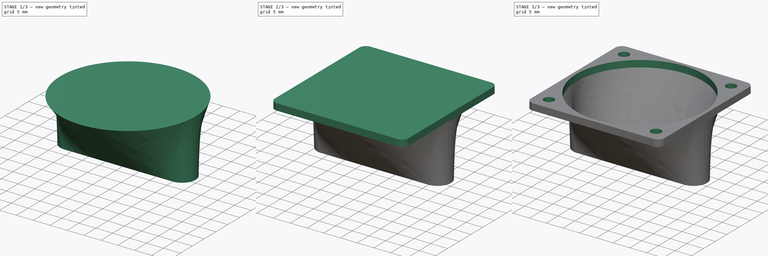
[diagram: build sequence overview — one tinted view per stage of 3, left to right]
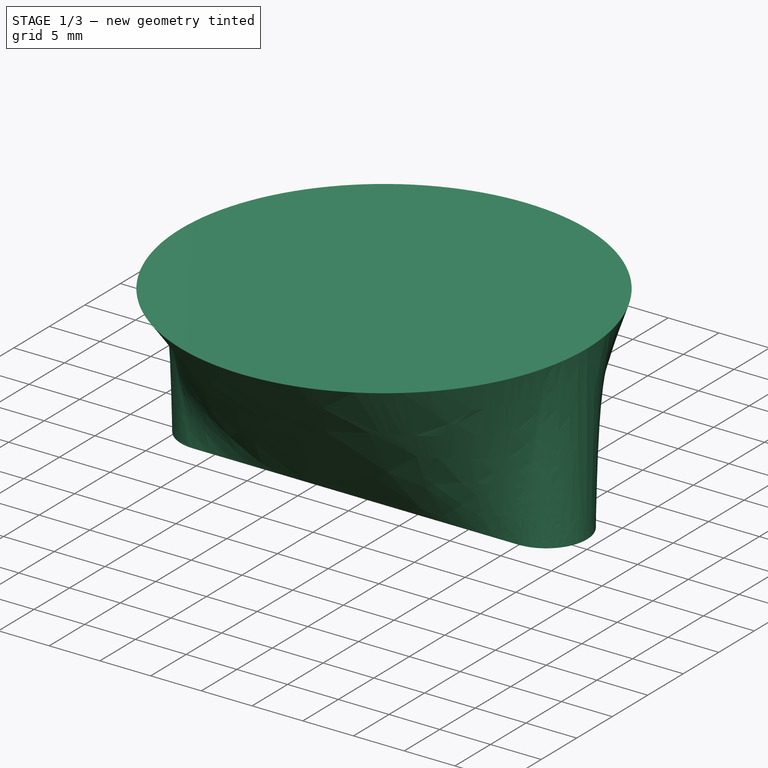
[diagram: stage 1 of 3 — iso view after this stage's code; geometry added in this stage tinted green]
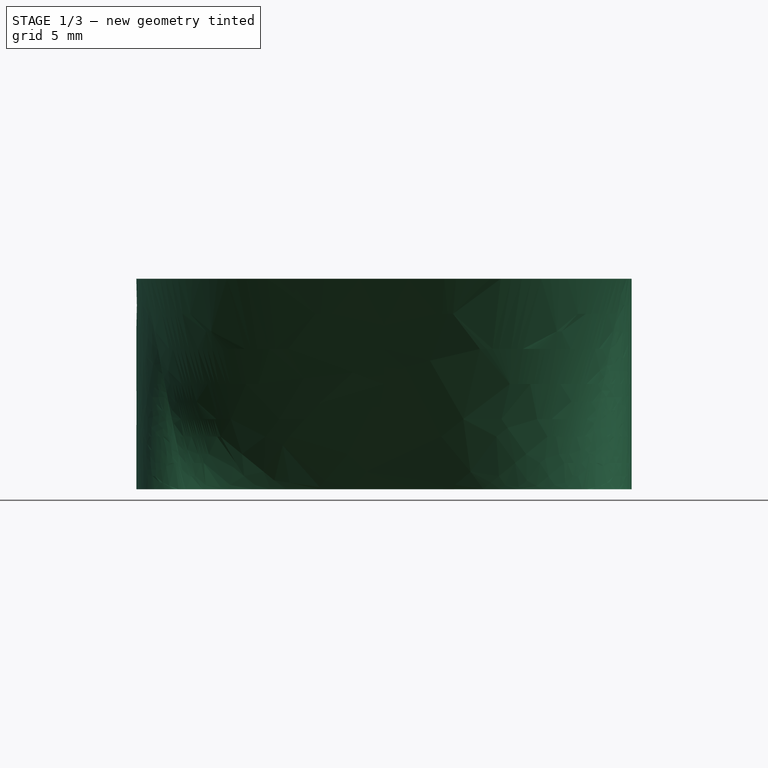
[diagram: stage 1 of 3 — front view after this stage's code; geometry added in this stage tinted green]
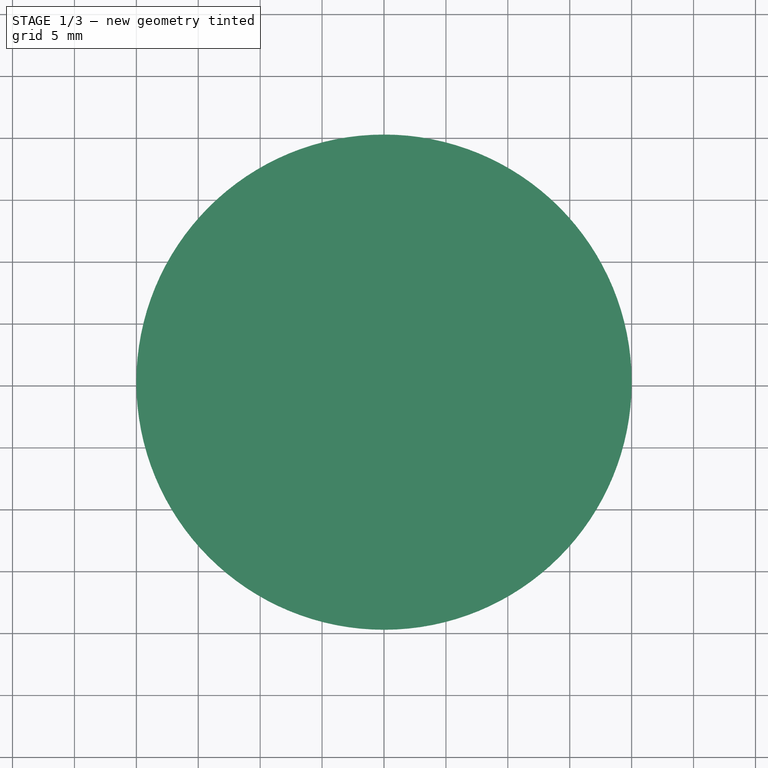
[diagram: stage 1 of 3 — top view after this stage's code; geometry added in this stage tinted green]
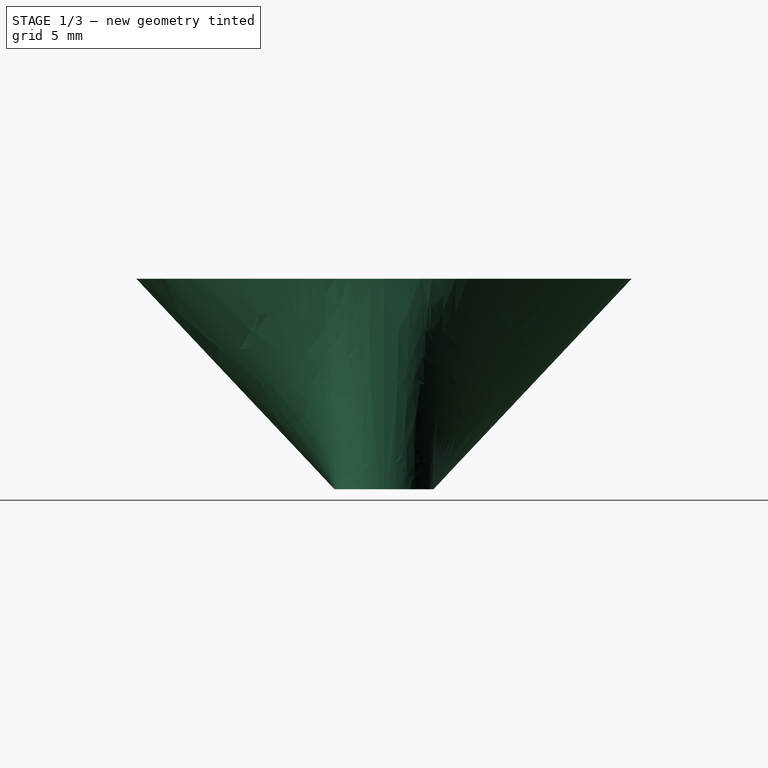
[diagram: stage 1 of 3 — right view after this stage's code; geometry added in this stage tinted green]
FCSTD DOCUMENT  (FreeCAD 0.15R4671 (Git))
Label: Kraken_Cooler
License: All rights reserved
LicenseURL: http://en.wikipedia.org/wiki/All_rights_reserved
objects: Sketcher::SketchObject×7, Part::Loft×2, PartDesign::Pocket×2, Part::Cut×1, PartDesign::Pad×1
note: 16 computed .brp shape members not serialized (recipe doc carries the construction recipe); baked Part::Feature solids carry a one-line shape summary decoded from their .brp

FEATURE [Sketcher::SketchObject] Sketch
  sketch-geometry (4):
    g0: ArcOfCircle CenterX=-16 CenterY=0 CenterZ=0 NormalX=0 NormalY=0 NormalZ=1 Radius=3 StartAngle=1.5708 EndAngle=4.71239
    g1: ArcOfCircle CenterX=16 CenterY=0 CenterZ=0 NormalX=0 NormalY=0 NormalZ=1 Radius=3 StartAngle=4.71239 EndAngle=7.85398
    g2: LineSegment StartX=-16 StartY=-3 StartZ=0 EndX=16 EndY=-3 EndZ=0
    g3: LineSegment StartX=-16 StartY=3 StartZ=0 EndX=16 EndY=3 EndZ=0
  constraints (10):
    c: Tangent(g0,g3) = 1.5708
    c: Tangent(g0,g2) = -1.5708
    c: Tangent(g2,g1) = -1.5708
    c: Tangent(g3,g1) = 1.5708
    c: Horizontal(g2)
    c: Equal(g0,g1)
    c: Distance(g0,g1) = 32
    c: Radius(g0) = 3
    c: Symmetric(g0,g1,g-2)
    c: PointOnObject(g1,g-1)
FEATURE [Sketcher::SketchObject] Sketch001
  sketch-geometry (4):
    g0: ArcOfCircle CenterX=-16 CenterY=0 CenterZ=0 NormalX=0 NormalY=0 NormalZ=1 Radius=4 StartAngle=1.5708 EndAngle=4.71239
    g1: ArcOfCircle CenterX=16 CenterY=0 CenterZ=0 NormalX=0 NormalY=0 NormalZ=1 Radius=4 StartAngle=4.71239 EndAngle=7.85398
    g2: LineSegment StartX=-16 StartY=-4 StartZ=0 EndX=16 EndY=-4 EndZ=0
    g3: LineSegment StartX=-16 StartY=4 StartZ=0 EndX=16 EndY=4 EndZ=0
  constraints (10):
    c: Tangent(g0,g3) = 1.5708
    c: Tangent(g0,g2) = -1.5708
    c: Tangent(g2,g1) = -1.5708
    c: Tangent(g3,g1) = 1.5708
    c: Horizontal(g2)
    c: Equal(g0,g1)
    c: Distance(g0,g1) = 32
    c: Radius(g0) = 4
    c: Symmetric(g0,g1,g-2)
    c: PointOnObject(g1,g-1)
FEATURE [Sketcher::SketchObject] Sketch002
  Placement = pos=(0,0,17) rot=(0,0,1;0rad)
  sketch-geometry (1):
    g0: Circle CenterX=0 CenterY=0 CenterZ=0 NormalX=0 NormalY=0 NormalZ=1 Radius=19
  constraints (2):
    c: Radius(g0) = 19
    c: Coincident(g0,g-1)
FEATURE [Sketcher::SketchObject] Sketch003
  Placement = pos=(0,0,17) rot=(0,0,1;0rad)
  sketch-geometry (1):
    g0: Circle CenterX=0 CenterY=0 CenterZ=0 NormalX=0 NormalY=0 NormalZ=1 Radius=20
  constraints (2):
    c: Radius(g0) = 20
    c: Coincident(g0,g-1)
FEATURE [Part::Loft] Loft
  Closed = false
  Ruled = false
  Sections = -> [Sketch,Sketch002]
  Solid = true
FEATURE [Part::Loft] Loft001
  Closed = false
  Ruled = false
  Sections = -> [Sketch001,Sketch003]
  Solid = true
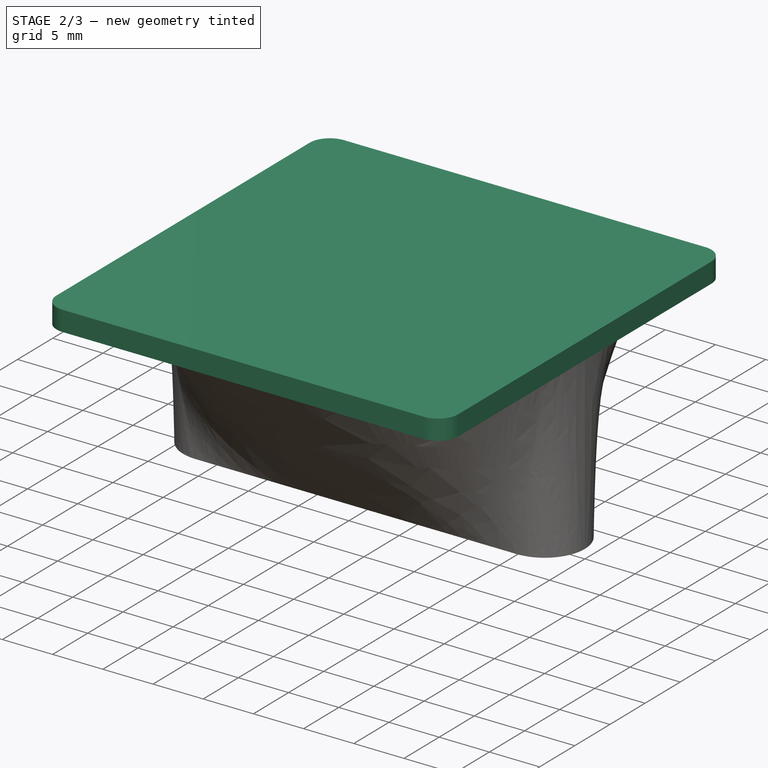
[diagram: stage 2 of 3 — iso view after this stage's code; geometry added in this stage tinted green]
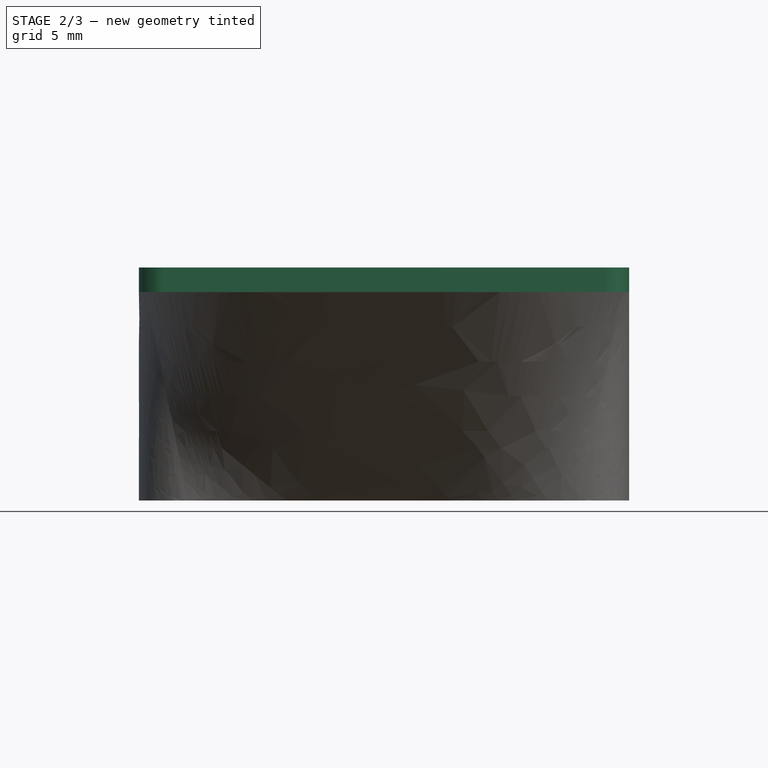
[diagram: stage 2 of 3 — front view after this stage's code; geometry added in this stage tinted green]
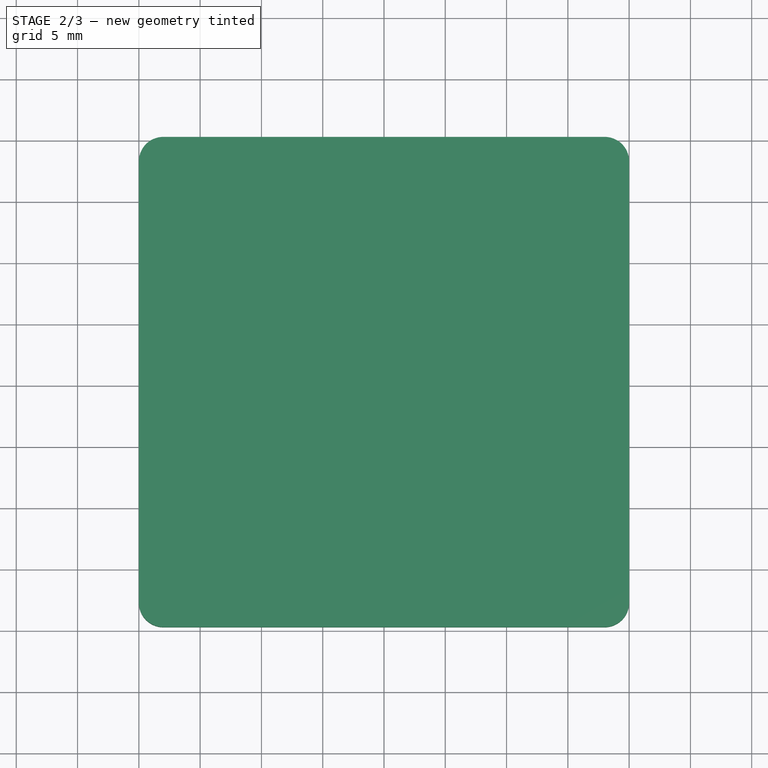
[diagram: stage 2 of 3 — top view after this stage's code; geometry added in this stage tinted green]
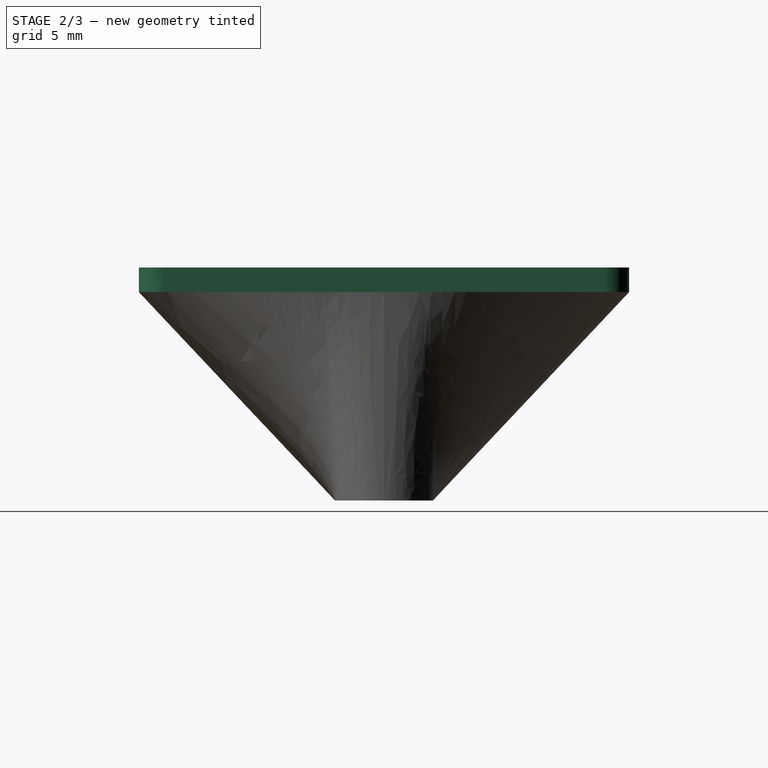
[diagram: stage 2 of 3 — right view after this stage's code; geometry added in this stage tinted green]
FEATURE [Part::Cut] Cut
  Base = -> Loft001
  Tool = -> Loft
FEATURE [Sketcher::SketchObject] Sketch004
  Placement = pos=(0,0,17) rot=(0,0,1;0rad)
  Support = -> Cut [Face4]
  sketch-geometry (8):
    g0: LineSegment StartX=-18 StartY=20 StartZ=0 EndX=18 EndY=20 EndZ=0
    g1: LineSegment StartX=20 StartY=18 StartZ=0 EndX=20 EndY=-18 EndZ=0
    g2: LineSegment StartX=18 StartY=-20 StartZ=0 EndX=-18 EndY=-20 EndZ=0
    g3: LineSegment StartX=-20 StartY=-18 StartZ=0 EndX=-20 EndY=18 EndZ=0
    g4: ArcOfCircle CenterX=-18 CenterY=18 CenterZ=0 NormalX=0 NormalY=0 NormalZ=1 Radius=2 StartAngle=1.5708 EndAngle=3.14159
    g5: ArcOfCircle CenterX=18 CenterY=18 CenterZ=0 NormalX=0 NormalY=0 NormalZ=1 Radius=2 StartAngle=0 EndAngle=1.5708
    g6: ArcOfCircle CenterX=18 CenterY=-18 CenterZ=0 NormalX=0 NormalY=0 NormalZ=1 Radius=2 StartAngle=4.71239 EndAngle=6.28319
    g7: ArcOfCircle CenterX=-18 CenterY=-18 CenterZ=0 NormalX=0 NormalY=0 NormalZ=1 Radius=2 StartAngle=3.14159 EndAngle=4.71239
  constraints (19):
    c: Horizontal(g0)
    c: Horizontal(g2)
    c: Vertical(g1)
    c: Tangent(g3,g4) = 1.5708
    c: Tangent(g0,g4) = 1.5708
    c: Tangent(g0,g5) = 1.5708
    c: Tangent(g1,g5) = 1.5708
    c: Tangent(g1,g6) = 1.5708
    c: Tangent(g2,g6) = 1.5708
    c: Tangent(g3,g7) = 1.5708
    c: Tangent(g2,g7) = 1.5708
    c: Distance(g1,g3) = 40
    c: Distance(g0,g2) = 40
    c: Radius(g4) = 2
    c: Radius(g5) = 2
    c: Radius(g7) = 2
    c: Radius(g6) = 2
    c: Symmetric(g3,g1,g-2)
    c: Symmetric(g3,g3,g-1)
FEATURE [PartDesign::Pad] Pad
  Length = 2
  Length2 = 100
  Sketch = -> Sketch004
  Type = 0
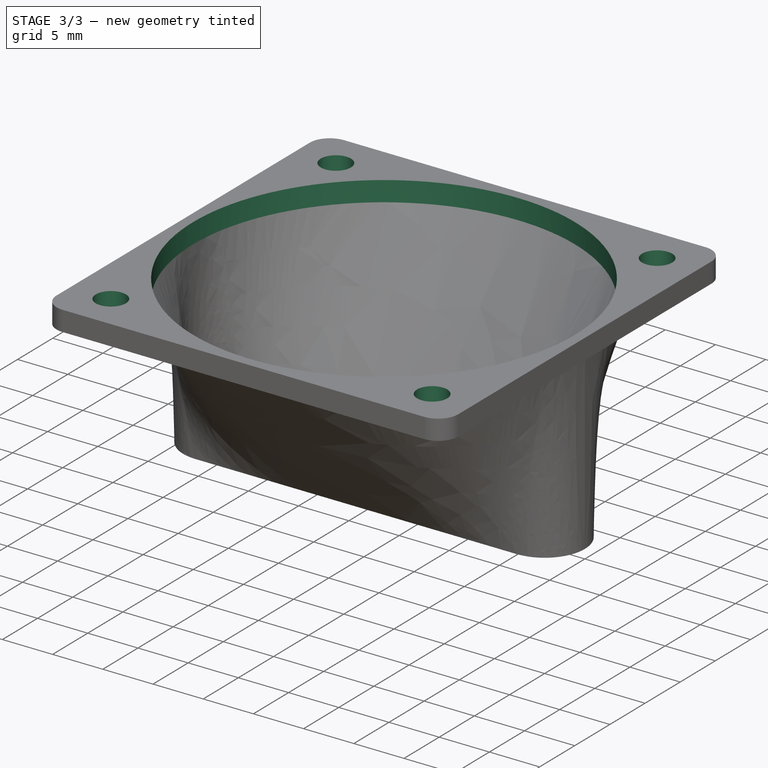
[diagram: stage 3 of 3 — iso view after this stage's code; geometry added in this stage tinted green]
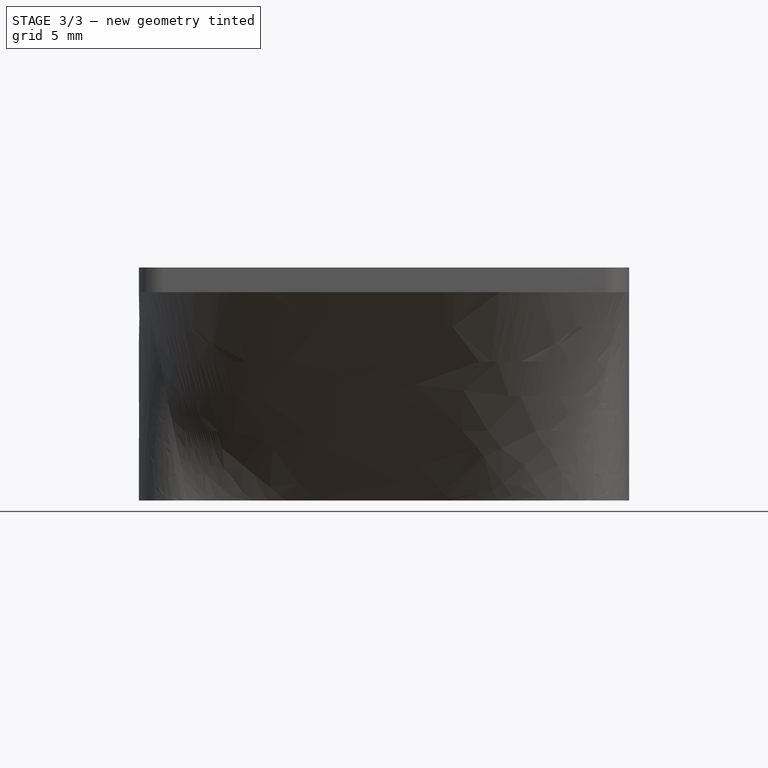
[diagram: stage 3 of 3 — front view after this stage's code; geometry added in this stage tinted green]
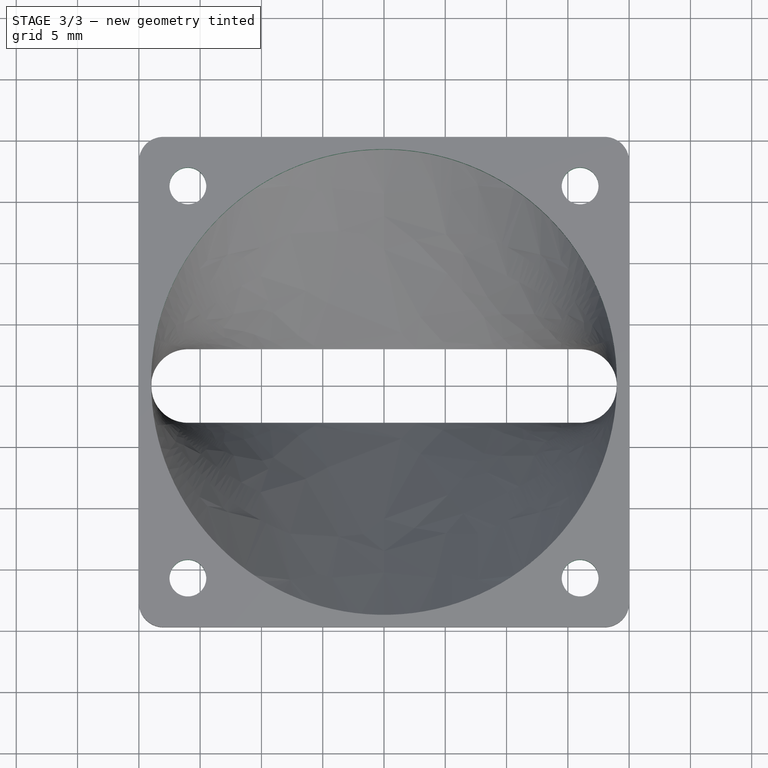
[diagram: stage 3 of 3 — top view after this stage's code; geometry added in this stage tinted green]
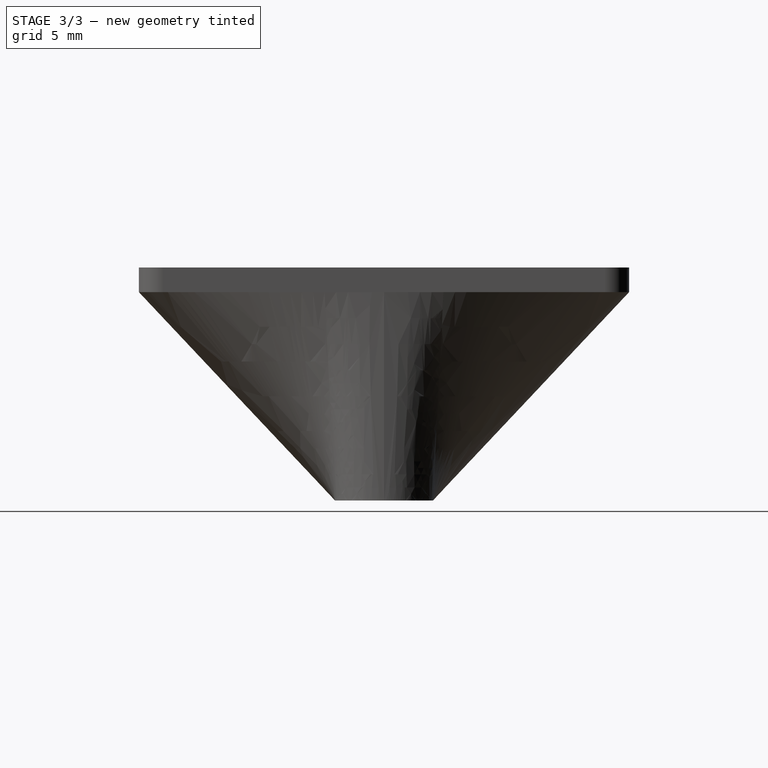
[diagram: stage 3 of 3 — right view after this stage's code; geometry added in this stage tinted green]
FEATURE [Sketcher::SketchObject] Sketch005
  Placement = pos=(0,0,19) rot=(0,0,1;0rad)
  Support = -> Pad [Face5]
  sketch-geometry (1):
    g0: Circle CenterX=0 CenterY=0 CenterZ=0 NormalX=0 NormalY=0 NormalZ=1 Radius=19
  constraints (2):
    c: Coincident(g0,g-1)
    c: Radius(g0) = 19
FEATURE [PartDesign::Pocket] Pocket
  Length = 2
  Sketch = -> Sketch005
  Type = 0
FEATURE [Sketcher::SketchObject] Sketch006
  ExternalGeometry = -> [Pocket]
  Placement = pos=(0,0,19) rot=(0,0,1;0rad)
  Support = -> Pocket [Face5]
  sketch-geometry (4):
    g0: Circle CenterX=-16 CenterY=16 CenterZ=0 NormalX=0 NormalY=0 NormalZ=1 Radius=1.5
    g1: Circle CenterX=16 CenterY=16 CenterZ=0 NormalX=0 NormalY=0 NormalZ=1 Radius=1.5
    g2: Circle CenterX=-16 CenterY=-16 CenterZ=0 NormalX=0 NormalY=0 NormalZ=1 Radius=1.5
    g3: Circle CenterX=16 CenterY=-16 CenterZ=0 NormalX=0 NormalY=0 NormalZ=1 Radius=1.5
  constraints (12):
    c: Radius(g0) = 1.5
    c: Radius(g1) = 1.5
    c: Radius(g2) = 1.5
    c: Radius(g3) = 1.5
    c: Distance(g0,g-4) = 4
    c: Distance(g0,g-3) = 4
    c: Distance(g1,g-3) = 4
    c: Distance(g1,g-5) = 4
    c: Distance(g2,g-4) = 4
    c: Distance(g2,g-6) = 4
    c: Distance(g3,g-5) = 4
    c: Distance(g3,g-6) = 4
FEATURE [PartDesign::Pocket] Pocket001
  Length = 5
  Sketch = -> Sketch006
  Type = 0
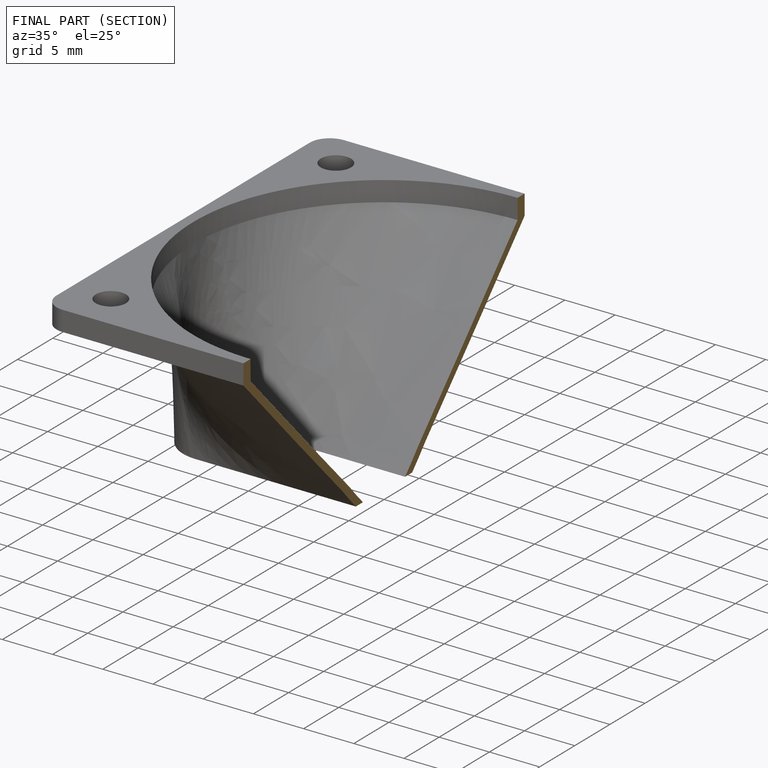
[diagram: finished part — half-section view (interior)]
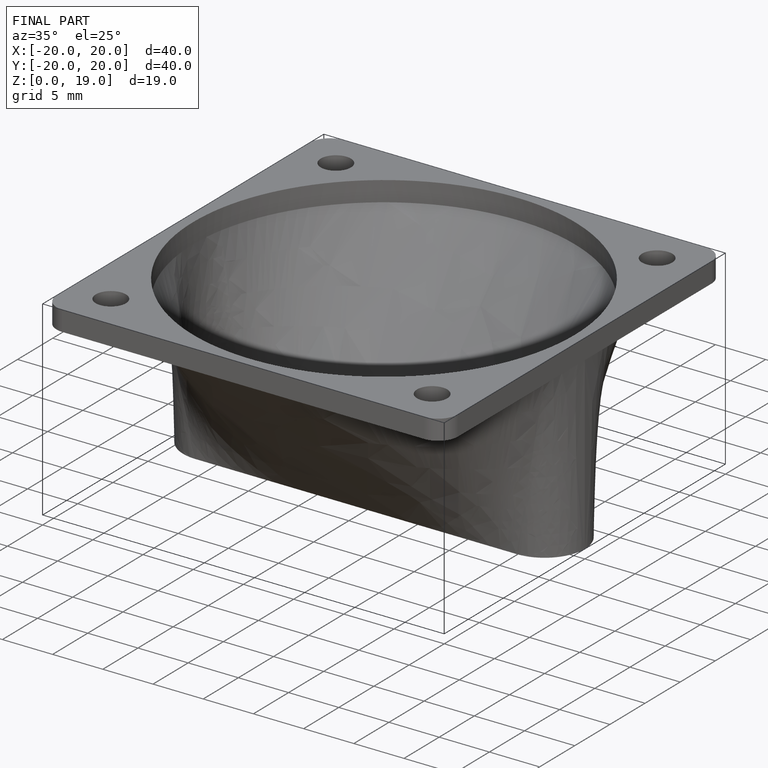
[diagram: finished part — iso view with bounding-box wireframe]
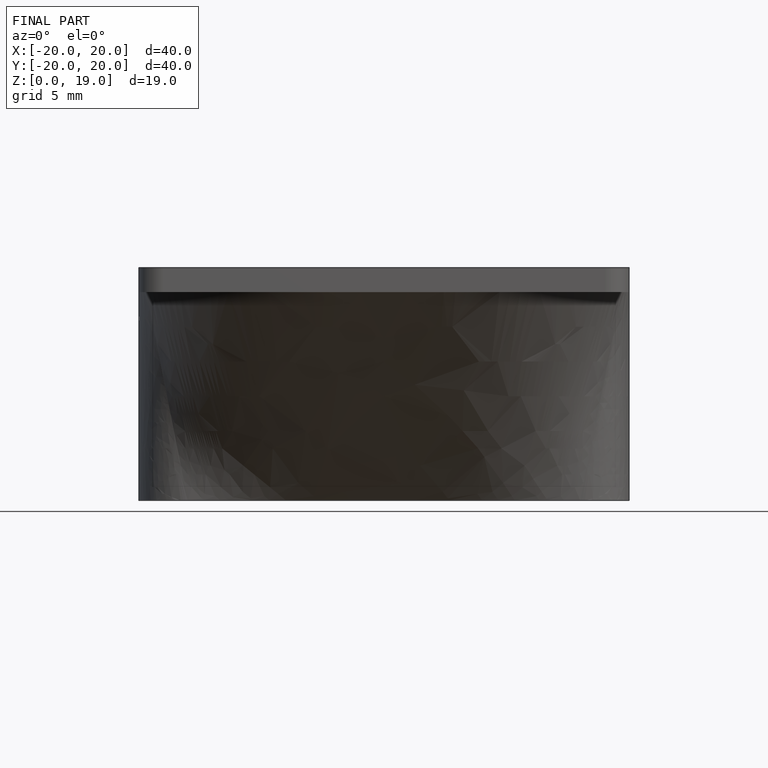
[diagram: finished part — front view with bounding-box wireframe]
